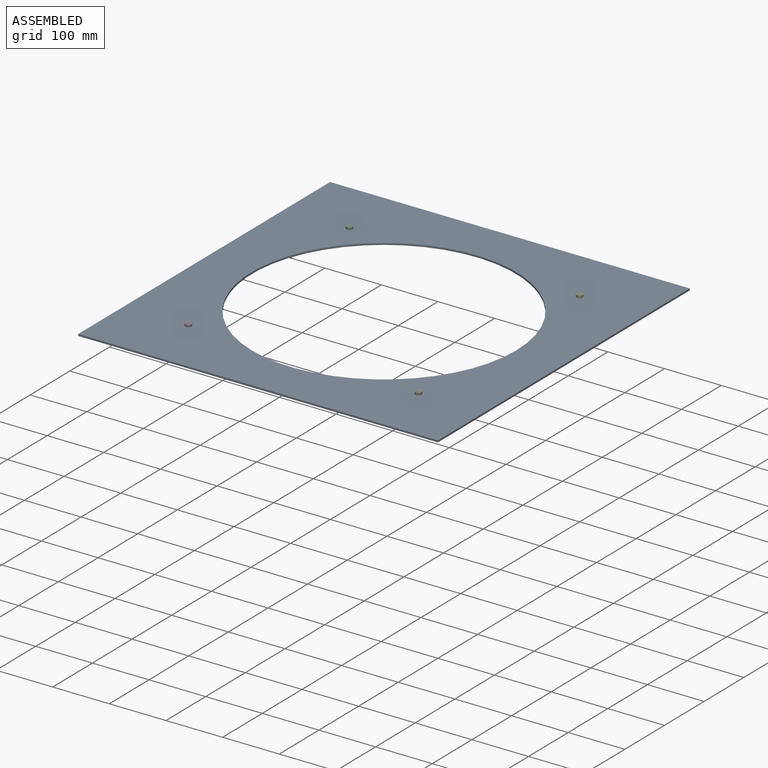
[diagram: assembled view]
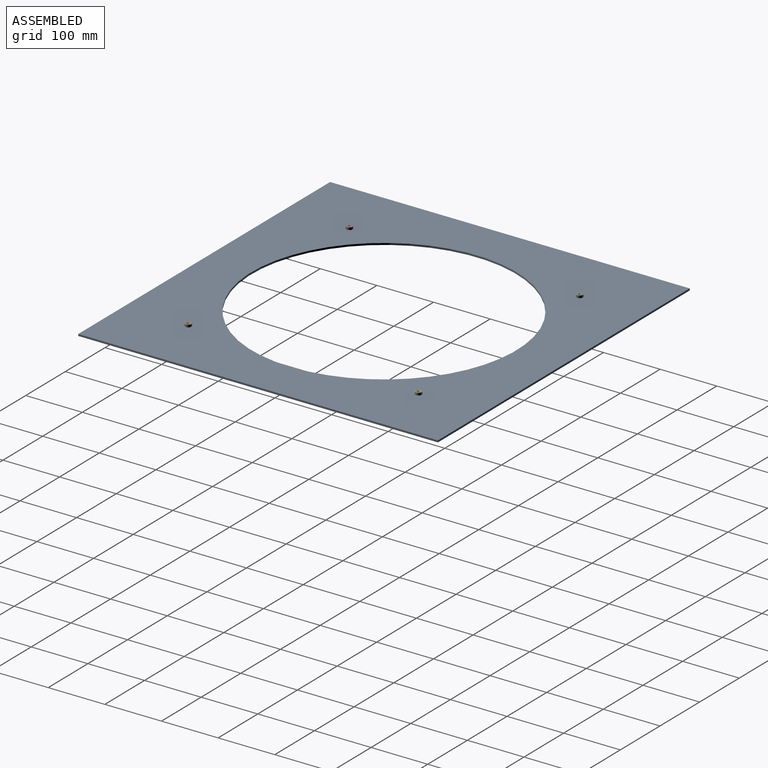
[diagram: assembled view, second angle]
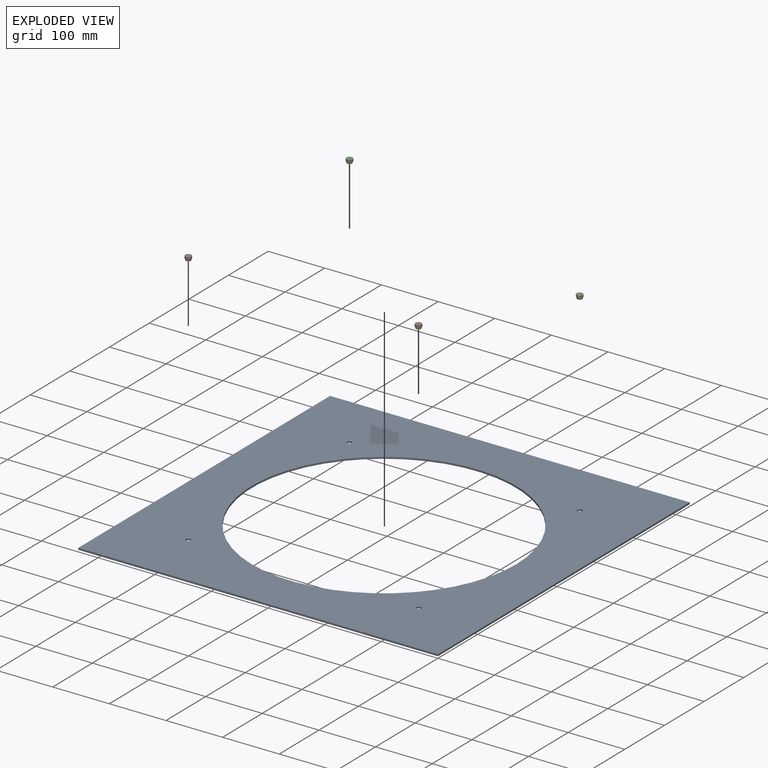
[diagram: exploded view]
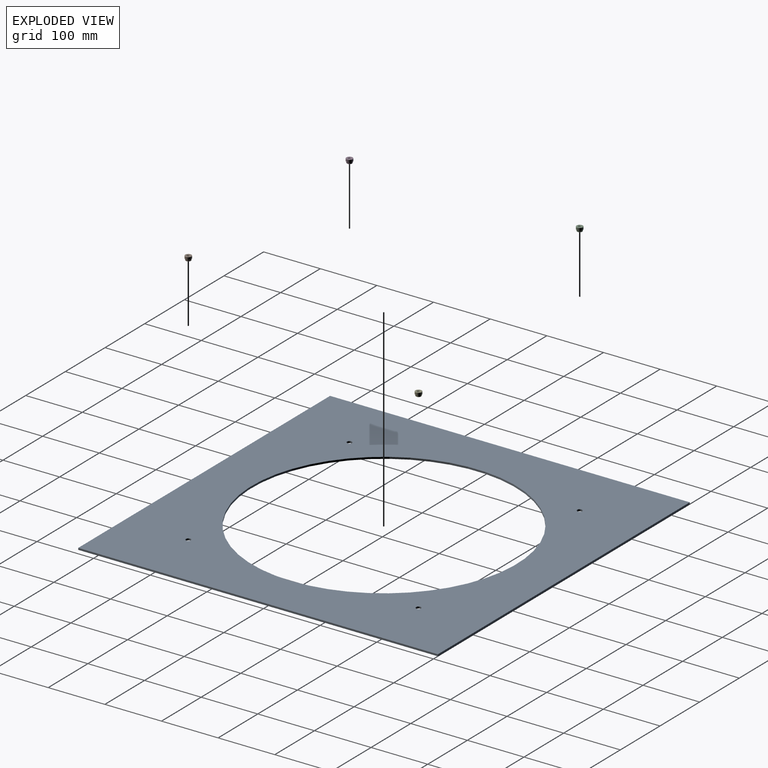
[diagram: exploded view, second angle]
ASSEMBLY  parts=5 mates=4
PART A: 11 faces, bbox 635x635x3.2 mm
  f0: plane 635x3.18mm, normal (0,1,0), area 2016.1mm2, adj f1,f4,f5,f6
  f1: plane 635x3.18mm, normal (-1,0,0), area 2016.1mm2, adj f0,f2,f5,f6
  f2: plane 635x3.18mm, normal (0,-1,0), area 2016.1mm2, adj f1,f4,f5,f6
  f3: cylinder r=233.68mm len=467.36mm, axis (0,0,-1), area 4661.7mm2, adj f5,f6
  f4: plane 635x3.18mm, normal (1,0,0), area 2016.1mm2, adj f0,f2,f5,f6
  f5: plane 635x635mm, normal (0,0,1), area 231434.6mm2, adj f0,f1,f2,f3,f4,f7,f8,f9
  f6: plane 635x635mm, normal (0,0,-1), area 231434.6mm2, adj f0,f1,f2,f3,f4,f7,f8,f9
  f7: cylinder r=4.37mm len=8.73mm, axis (0,0,1), area 87.1mm2, adj f5,f6
  f8: cylinder r=4.37mm len=8.73mm, axis (0,0,1), area 87.1mm2, adj f5,f6
  f9: cylinder r=4.37mm len=8.73mm, axis (0,0,1), area 87.1mm2, adj f5,f6
  f10: cylinder r=4.37mm len=8.73mm, axis (0,0,1), area 87.1mm2, adj f5,f6
PART B: 159 faces, bbox 11.2x11.2x8.5 mm
  f0: bspline ~8.1x7.33mm, area 86.2mm2, adj f1,f3,f156,f157,f158
  f1: cylinder r=2.35mm len=5.74mm, axis (0,0,1), area 10.2mm2, adj f0,f2,f157,f158
  f2: bspline ~8.1x7.33mm, area 86.2mm2, adj f1,f3,f156,f157,f158
  f3: cylinder r=3.17mm len=7.39mm, axis (0,0,1), area 14.9mm2, adj f0,f2,f156,f158
  f4: cylinder r=4.69mm len=2.38mm, axis (0,0,1), area 1.6mm2, adj f142,f146,f148,f151
  f5: cylinder r=4.69mm len=2.38mm, axis (0,0,1), area 1.6mm2, adj f139,f143,f148,f151
  f6: cylinder r=4.69mm len=2.38mm, axis (0,0,1), area 1.6mm2, adj f136,f140,f148,f151
  f7: cylinder r=4.69mm len=2.38mm, axis (0,0,1), area 1.6mm2, adj f133,f137,f148,f151
  f8: cylinder r=4.69mm len=2.38mm, axis (0,0,1), area 1.6mm2, adj f130,f134,f148,f151
  f9: cylinder r=4.69mm len=2.38mm, axis (0,0,1), area 1.6mm2, adj f127,f131,f148,f151
  f10: cylinder r=4.69mm len=2.38mm, axis (0,0,1), area 1.6mm2, adj f124,f128,f148,f151
  f11: cylinder r=4.69mm len=2.38mm, axis (0,0,1), area 1.6mm2, adj f121,f125,f148,f151
  f12: cylinder r=4.69mm len=2.38mm, axis (0,0,1), area 1.6mm2, adj f118,f122,f148,f151
  f13: cylinder r=4.69mm len=2.38mm, axis (0,0,1), area 1.6mm2, adj f115,f119,f148,f151
  f14: cylinder r=4.69mm len=2.38mm, axis (0,0,1), area 1.6mm2, adj f112,f116,f148,f151
  f15: cylinder r=4.69mm len=2.38mm, axis (0,0,1), area 1.6mm2, adj f109,f113,f148,f151
  f16: cylinder r=4.69mm len=2.38mm, axis (0,0,1), area 1.6mm2, adj f106,f110,f148,f151
  f17: cylinder r=4.69mm len=2.38mm, axis (0,0,1), area 1.6mm2, adj f103,f107,f148,f151
  f18: cylinder r=4.69mm len=2.38mm, axis (0,0,1), area 1.6mm2, adj f100,f104,f148,f151
  f19: cylinder r=4.69mm len=2.38mm, axis (0,0,1), area 1.6mm2, adj f97,f101,f148,f151
  f20: cylinder r=4.69mm len=2.38mm, axis (0,0,1), area 1.6mm2, adj f94,f98,f148,f151
  f21: cylinder r=4.69mm len=2.38mm, axis (0,0,1), area 1.6mm2, adj f91,f95,f148,f151
  f22: cylinder r=4.69mm len=2.38mm, axis (0,0,1), area 1.6mm2, adj f88,f92,f148,f151
  f23: cylinder r=4.69mm len=2.38mm, axis (0,0,1), area 1.6mm2, adj f85,f89,f148,f151
  f24: cylinder r=4.69mm len=2.38mm, axis (0,0,1), area 1.6mm2, adj f82,f86,f148,f151
  f25: cylinder r=4.69mm len=2.38mm, axis (0,0,1), area 1.6mm2, adj f79,f83,f148,f151
  f26: cylinder r=4.69mm len=2.38mm, axis (0,0,1), area 1.6mm2, adj f76,f80,f148,f151
  f27: cylinder r=4.69mm len=2.38mm, axis (0,0,1), area 1.6mm2, adj f73,f77,f148,f151
  f28: cylinder r=4.69mm len=2.38mm, axis (0,0,1), area 1.6mm2, adj f70,f74,f148,f151
  f29: cylinder r=4.69mm len=2.38mm, axis (0,0,1), area 1.6mm2, adj f67,f71,f148,f151
  f30: cylinder r=4.69mm len=2.38mm, axis (0,0,1), area 1.6mm2, adj f64,f68,f148,f151
  f31: cylinder r=4.69mm len=2.38mm, axis (0,0,1), area 1.6mm2, adj f61,f65,f148,f151
  f32: cylinder r=4.69mm len=2.38mm, axis (0,0,1), area 1.6mm2, adj f58,f62,f148,f151
  f33: cylinder r=4.69mm len=2.38mm, axis (0,0,1), area 1.6mm2, adj f55,f59,f148,f151
  f34: cylinder r=4.69mm len=2.38mm, axis (0,0,1), area 1.6mm2, adj f52,f56,f148,f151
  f35: cylinder r=4.69mm len=2.38mm, axis (0,0,1), area 1.6mm2, adj f49,f53,f148,f151
  f36: cylinder r=4.69mm len=2.38mm, axis (0,0,1), area 1.6mm2, adj f46,f50,f148,f151
  f37: cylinder r=4.69mm len=2.38mm, axis (0,0,1), area 1.6mm2, adj f43,f47,f148,f151
  f38: cylinder r=4.69mm len=2.38mm, axis (0,0,1), area 1.6mm2, adj f40,f44,f148,f151
  f39: cylinder r=4.69mm len=2.38mm, axis (0,0,1), area 1.6mm2, adj f41,f145,f148,f151
  f40: plane 2.38x0.19mm, normal (1,0,0), area 0.5mm2, adj f38,f42,f148,f151
  f41: plane 2.38x0.19mm, normal (-1,0,0), area 0.5mm2, adj f39,f42,f148,f151
  f42: plane 2.38x0.13mm, normal (0,1,0), area 0.3mm2, adj f40,f41,f148,f151
  f43: plane 2.38x0.19mm, normal (0.98,0.17,0), area 0.5mm2, adj f37,f45,f148,f151
  f44: plane 2.38x0.19mm, normal (-0.98,-0.17,0), area 0.5mm2, adj f38,f45,f148,f151
  f45: plane 2.38x0.13mm, normal (-0.17,0.98,0), area 0.3mm2, adj f43,f44,f148,f151
  f46: plane 2.38x0.18mm, normal (0.94,0.34,0), area 0.5mm2, adj f36,f48,f148,f151
  f47: plane 2.38x0.18mm, normal (-0.94,-0.34,0), area 0.5mm2, adj f37,f48,f148,f151
  f48: plane 2.38x0.12mm, normal (-0.34,0.94,0), area 0.3mm2, adj f46,f47,f148,f151
  f49: plane 2.38x0.16mm, normal (0.87,0.5,0), area 0.5mm2, adj f35,f51,f148,f151
  f50: plane 2.38x0.16mm, normal (-0.87,-0.5,0), area 0.5mm2, adj f36,f51,f148,f151
  f51: plane 2.38x0.11mm, normal (-0.5,0.87,0), area 0.3mm2, adj f49,f50,f148,f151
  f52: plane 2.38x0.15mm, normal (0.77,0.64,0), area 0.5mm2, adj f34,f54,f148,f151
  f53: plane 2.38x0.15mm, normal (-0.77,-0.64,0), area 0.5mm2, adj f35,f54,f148,f151
  f54: plane 2.38x0.1mm, normal (-0.64,0.77,0), area 0.3mm2, adj f52,f53,f148,f151
  f55: plane 2.38x0.15mm, normal (0.64,0.77,0), area 0.5mm2, adj f33,f57,f148,f151
  f56: plane 2.38x0.15mm, normal (-0.64,-0.77,0), area 0.5mm2, adj f34,f57,f148,f151
  f57: plane 2.38x0.1mm, normal (-0.77,0.64,0), area 0.3mm2, adj f55,f56,f148,f151
  f58: plane 2.38x0.16mm, normal (0.5,0.87,0), area 0.5mm2, adj f32,f60,f148,f151
  f59: plane 2.38x0.16mm, normal (-0.5,-0.87,0), area 0.5mm2, adj f33,f60,f148,f151
  f60: plane 2.38x0.11mm, normal (-0.87,0.5,0), area 0.3mm2, adj f58,f59,f148,f151
  f61: plane 2.38x0.18mm, normal (0.34,0.94,0), area 0.5mm2, adj f31,f63,f148,f151
  f62: plane 2.38x0.18mm, normal (-0.34,-0.94,0), area 0.5mm2, adj f32,f63,f148,f151
  f63: plane 2.38x0.12mm, normal (-0.94,0.34,0), area 0.3mm2, adj f61,f62,f148,f151
  f64: plane 2.38x0.19mm, normal (0.17,0.98,0), area 0.5mm2, adj f30,f66,f148,f151
  f65: plane 2.38x0.19mm, normal (-0.17,-0.98,0), area 0.5mm2, adj f31,f66,f148,f151
  f66: plane 2.38x0.13mm, normal (-0.98,0.17,0), area 0.3mm2, adj f64,f65,f148,f151
  f67: plane 2.38x0.19mm, normal (0,1,0), area 0.5mm2, adj f29,f69,f148,f151
  f68: plane 2.38x0.19mm, normal (0,-1,0), area 0.5mm2, adj f30,f69,f148,f151
  f69: plane 2.38x0.13mm, normal (-1,0,0), area 0.3mm2, adj f67,f68,f148,f151
  f70: plane 2.38x0.19mm, normal (-0.17,0.98,0), area 0.5mm2, adj f28,f72,f148,f151
  f71: plane 2.38x0.19mm, normal (0.17,-0.98,0), area 0.5mm2, adj f29,f72,f148,f151
  f72: plane 2.38x0.13mm, normal (-0.98,-0.17,0), area 0.3mm2, adj f70,f71,f148,f151
  f73: plane 2.38x0.18mm, normal (-0.34,0.94,0), area 0.5mm2, adj f27,f75,f148,f151
  f74: plane 2.38x0.18mm, normal (0.34,-0.94,0), area 0.5mm2, adj f28,f75,f148,f151
  f75: plane 2.38x0.12mm, normal (-0.94,-0.34,0), area 0.3mm2, adj f73,f74,f148,f151
  f76: plane 2.38x0.16mm, normal (-0.5,0.87,0), area 0.5mm2, adj f26,f78,f148,f151
  f77: plane 2.38x0.16mm, normal (0.5,-0.87,0), area 0.5mm2, adj f27,f78,f148,f151
  f78: plane 2.38x0.11mm, normal (-0.87,-0.5,0), area 0.3mm2, adj f76,f77,f148,f151
  f79: plane 2.38x0.15mm, normal (-0.64,0.77,0), area 0.5mm2, adj f25,f81,f148,f151
  f80: plane 2.38x0.15mm, normal (0.64,-0.77,0), area 0.5mm2, adj f26,f81,f148,f151
  f81: plane 2.38x0.1mm, normal (-0.77,-0.64,0), area 0.3mm2, adj f79,f80,f148,f151
  f82: plane 2.38x0.15mm, normal (-0.77,0.64,0), area 0.5mm2, adj f24,f84,f148,f151
  f83: plane 2.38x0.15mm, normal (0.77,-0.64,0), area 0.5mm2, adj f25,f84,f148,f151
  f84: plane 2.38x0.1mm, normal (-0.64,-0.77,0), area 0.3mm2, adj f82,f83,f148,f151
  f85: plane 2.38x0.16mm, normal (-0.87,0.5,0), area 0.5mm2, adj f23,f87,f148,f151
  f86: plane 2.38x0.16mm, normal (0.87,-0.5,0), area 0.5mm2, adj f24,f87,f148,f151
  f87: plane 2.38x0.11mm, normal (-0.5,-0.87,0), area 0.3mm2, adj f85,f86,f148,f151
  f88: plane 2.38x0.18mm, normal (-0.94,0.34,0), area 0.5mm2, adj f22,f90,f148,f151
  f89: plane 2.38x0.18mm, normal (0.94,-0.34,0), area 0.5mm2, adj f23,f90,f148,f151
  f90: plane 2.38x0.12mm, normal (-0.34,-0.94,0), area 0.3mm2, adj f88,f89,f148,f151
  f91: plane 2.38x0.19mm, normal (-0.98,0.17,0), area 0.5mm2, adj f21,f93,f148,f151
  f92: plane 2.38x0.19mm, normal (0.98,-0.17,0), area 0.5mm2, adj f22,f93,f148,f151
  f93: plane 2.38x0.13mm, normal (-0.17,-0.98,0), area 0.3mm2, adj f91,f92,f148,f151
  f94: plane 2.38x0.19mm, normal (-1,0,0), area 0.5mm2, adj f20,f96,f148,f151
  f95: plane 2.38x0.19mm, normal (1,0,0), area 0.5mm2, adj f21,f96,f148,f151
  f96: plane 2.38x0.13mm, normal (0,-1,0), area 0.3mm2, adj f94,f95,f148,f151
  f97: plane 2.38x0.19mm, normal (-0.98,-0.17,0), area 0.5mm2, adj f19,f99,f148,f151
  f98: plane 2.38x0.19mm, normal (0.98,0.17,0), area 0.5mm2, adj f20,f99,f148,f151
  f99: plane 2.38x0.13mm, normal (0.17,-0.98,0), area 0.3mm2, adj f97,f98,f148,f151
  f100: plane 2.38x0.18mm, normal (-0.94,-0.34,0), area 0.5mm2, adj f18,f102,f148,f151
  f101: plane 2.38x0.18mm, normal (0.94,0.34,0), area 0.5mm2, adj f19,f102,f148,f151
  f102: plane 2.38x0.12mm, normal (0.34,-0.94,0), area 0.3mm2, adj f100,f101,f148,f151
  f103: plane 2.38x0.16mm, normal (-0.87,-0.5,0), area 0.5mm2, adj f17,f105,f148,f151
  f104: plane 2.38x0.16mm, normal (0.87,0.5,0), area 0.5mm2, adj f18,f105,f148,f151
  f105: plane 2.38x0.11mm, normal (0.5,-0.87,0), area 0.3mm2, adj f103,f104,f148,f151
  f106: plane 2.38x0.15mm, normal (-0.77,-0.64,0), area 0.5mm2, adj f16,f108,f148,f151
  f107: plane 2.38x0.15mm, normal (0.77,0.64,0), area 0.5mm2, adj f17,f108,f148,f151
  f108: plane 2.38x0.1mm, normal (0.64,-0.77,0), area 0.3mm2, adj f106,f107,f148,f151
  f109: plane 2.38x0.15mm, normal (-0.64,-0.77,0), area 0.5mm2, adj f15,f111,f148,f151
  f110: plane 2.38x0.15mm, normal (0.64,0.77,0), area 0.5mm2, adj f16,f111,f148,f151
  f111: plane 2.38x0.1mm, normal (0.77,-0.64,0), area 0.3mm2, adj f109,f110,f148,f151
  f112: plane 2.38x0.16mm, normal (-0.5,-0.87,0), area 0.5mm2, adj f14,f114,f148,f151
  f113: plane 2.38x0.16mm, normal (0.5,0.87,0), area 0.5mm2, adj f15,f114,f148,f151
  f114: plane 2.38x0.11mm, normal (0.87,-0.5,0), area 0.3mm2, adj f112,f113,f148,f151
  f115: plane 2.38x0.18mm, normal (-0.34,-0.94,0), area 0.5mm2, adj f13,f117,f148,f151
  f116: plane 2.38x0.18mm, normal (0.34,0.94,0), area 0.5mm2, adj f14,f117,f148,f151
  f117: plane 2.38x0.12mm, normal (0.94,-0.34,0), area 0.3mm2, adj f115,f116,f148,f151
  f118: plane 2.38x0.19mm, normal (-0.17,-0.98,0), area 0.5mm2, adj f12,f120,f148,f151
  f119: plane 2.38x0.19mm, normal (0.17,0.98,0), area 0.5mm2, adj f13,f120,f148,f151
  f120: plane 2.38x0.13mm, normal (0.98,-0.17,0), area 0.3mm2, adj f118,f119,f148,f151
  f121: plane 2.38x0.19mm, normal (0,-1,0), area 0.5mm2, adj f11,f123,f148,f151
  f122: plane 2.38x0.19mm, normal (0,1,0), area 0.5mm2, adj f12,f123,f148,f151
  f123: plane 2.38x0.13mm, normal (1,0,0), area 0.3mm2, adj f121,f122,f148,f151
  f124: plane 2.38x0.19mm, normal (0.17,-0.98,0), area 0.5mm2, adj f10,f126,f148,f151
  f125: plane 2.38x0.19mm, normal (-0.17,0.98,0), area 0.5mm2, adj f11,f126,f148,f151
  f126: plane 2.38x0.13mm, normal (0.98,0.17,0), area 0.3mm2, adj f124,f125,f148,f151
  f127: plane 2.38x0.18mm, normal (0.34,-0.94,0), area 0.5mm2, adj f9,f129,f148,f151
  f128: plane 2.38x0.18mm, normal (-0.34,0.94,0), area 0.5mm2, adj f10,f129,f148,f151
  f129: plane 2.38x0.12mm, normal (0.94,0.34,0), area 0.3mm2, adj f127,f128,f148,f151
  f130: plane 2.38x0.16mm, normal (0.5,-0.87,0), area 0.5mm2, adj f8,f132,f148,f151
  f131: plane 2.38x0.16mm, normal (-0.5,0.87,0), area 0.5mm2, adj f9,f132,f148,f151
  f132: plane 2.38x0.11mm, normal (0.87,0.5,0), area 0.3mm2, adj f130,f131,f148,f151
  f133: plane 2.38x0.15mm, normal (0.64,-0.77,0), area 0.5mm2, adj f7,f135,f148,f151
  f134: plane 2.38x0.15mm, normal (-0.64,0.77,0), area 0.5mm2, adj f8,f135,f148,f151
  f135: plane 2.38x0.1mm, normal (0.77,0.64,0), area 0.3mm2, adj f133,f134,f148,f151
  f136: plane 2.38x0.15mm, normal (0.77,-0.64,0), area 0.5mm2, adj f6,f138,f148,f151
  f137: plane 2.38x0.15mm, normal (-0.77,0.64,0), area 0.5mm2, adj f7,f138,f148,f151
  f138: plane 2.38x0.1mm, normal (0.64,0.77,0), area 0.3mm2, adj f136,f137,f148,f151
  f139: plane 2.38x0.16mm, normal (0.87,-0.5,0), area 0.5mm2, adj f5,f141,f148,f151
  f140: plane 2.38x0.16mm, normal (-0.87,0.5,0), area 0.5mm2, adj f6,f141,f148,f151
  f141: plane 2.38x0.11mm, normal (0.5,0.87,0), area 0.3mm2, adj f139,f140,f148,f151
  f142: plane 2.38x0.18mm, normal (0.94,-0.34,0), area 0.5mm2, adj f4,f144,f148,f151
  f143: plane 2.38x0.18mm, normal (-0.94,0.34,0), area 0.5mm2, adj f5,f144,f148,f151
  f144: plane 2.38x0.12mm, normal (0.34,0.94,0), area 0.3mm2, adj f142,f143,f148,f151
  f145: plane 2.38x0.19mm, normal (0.98,-0.17,0), area 0.5mm2, adj f39,f147,f148,f151
  f146: plane 2.38x0.19mm, normal (-0.98,0.17,0), area 0.5mm2, adj f4,f147,f148,f151
  f147: plane 2.38x0.13mm, normal (0.17,0.98,0), area 0.3mm2, adj f145,f146,f148,f151
  f148: plane 10.92x10.92mm, normal (0,0,-1), area 25.6mm2, adj f4,f5,f6,f7,f8,f9,f10,f11
  f149: cylinder r=5.59mm len=11.18mm, axis (0,0,1), area 142.7mm2, adj f154,f155
  f150: plane 10.92x10.92mm, normal (0,0,1), area 61mm2, adj f154,f156
  f151: plane 9.37x9.37mm, normal (0,0,-1), area 17.1mm2, adj f4,f5,f6,f7,f8,f9,f10,f11
  f152: cone r=4.32mm half-angle=20deg, axis (0,0,-1), area 22.2mm2, adj f151,f153
  f153: plane 8.64x8.64mm, normal (0,0,-1), area 25.9mm2, adj f152,f158
  f154: cone r=5.46mm half-angle=45deg, axis (0,0,-1), area 6.2mm2, adj f149,f150
  f155: cone r=5.59mm half-angle=45deg, axis (0,0,1), area 6.2mm2, adj f148,f149
  f156: cone r=3.23mm half-angle=45deg, axis (0,0,1), area 11mm2, adj f0,f2,f3,f150,f157
  f157: cone r=3.23mm half-angle=45deg, axis (0,0,1), area 0.9mm2, adj f0,f1,f2,f156
  f158: cone r=3.23mm half-angle=45deg, axis (0,0,-1), area 11.9mm2, adj f0,f1,f2,f3,f153
PART C: same geometry as B
PART D: same geometry as B
PART E: same geometry as B
PLACE A t=(-2948.79,-418.12,-47.47)mm fixed
PLACE B t=(-601.58,-703.8,-39.98)mm
PLACE C t=(-1007.98,-297.4,-39.98)mm
PLACE D t=(-1007.98,-703.8,-39.98)mm
PLACE E t=(-601.58,-297.4,-39.98)mm
MATE fastened D.f1 <-> A.f9  axis (0,0,-1) through (-1007.98,-703.8,-44.3)mm
MATE fastened C.f1 <-> A.f8  axis (0,0,-1) through (-1007.98,-297.4,-44.3)mm
MATE fastened E.f1 <-> A.f7  axis (0,0,-1) through (-601.58,-297.4,-44.3)mm
MATE fastened B.f1 <-> A.f10  axis (0,0,-1) through (-601.58,-703.8,-44.3)mm
